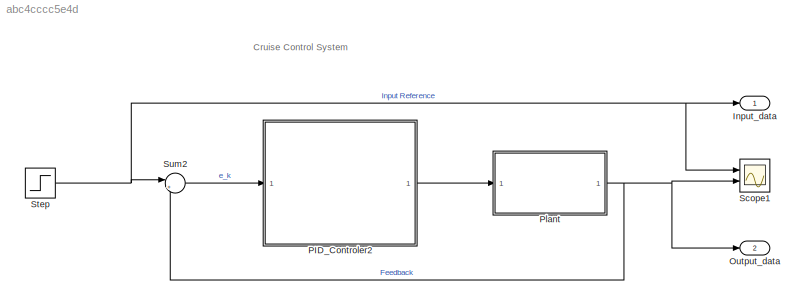
MODEL slx_abc4cccc5e4d
KIND model
CONFIG AbsTol = auto
CONFIG EnableMultiTasking = off
CONFIG FixedStep = Ts
CONFIG MaxStep = auto
CONFIG MinStep = auto
CONFIG PostLoadFcn = load('CruiseControlTask3_Parameters.mat');\nload('PID_calibrationValues_Cruise.mat');
CONFIG PreLoadFcn = clear;\nload('CruiseControlTask3_Parameters.mat');\nload('PID_calibrationValues_Cruise.mat');
CONFIG RelTol = 1e-3
CONFIG SampleTimeConstraint = Unconstrained
CONFIG SolverName = VariableStepAuto
CONFIG StartTime = 0.0
CONFIG StopTime = 50
BLOCK [Outport] Input_data
BLOCK [Outport] Output_data
  Port = 2
BLOCK [ModelReference] PID_Controler2
  ModelNameDialog = PID_Controller_referenceModel.slx
  ModelReferenceVersion = 1.16
  Ports = [1, 1]
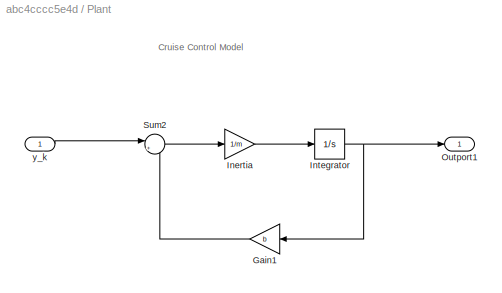
BLOCK [SubSystem] Plant
  Ports = [1, 1]
  RequestExecContextInheritance = off
BLOCK [Gain] Plant/Gain1
  Gain = b
  NameLocation = top
BLOCK [Gain] Plant/Inertia
  Gain = 1/m
BLOCK [Integrator] Plant/Integrator
  Ports = [1, 1]
BLOCK [Outport] Plant/Outport1
BLOCK [Sum] Plant/Sum2
  Inputs = |+-
  Ports = [2, 1]
BLOCK [Inport] Plant/y_k
BLOCK [Scope] Scope1
  Floating = off
  NumInputPorts = 2
  Ports = [2]
  ScopeSpecificationString = Simulink.scopes.TimeScopeBlockCfg('CurrentConfiguration', extmgr.ConfigurationSet(extmgr.Configuration('Core','General UI',true),extmgr.Configuration('Core','Source UI',true),extmgr.Configuration('Sources','WiredSimulink',true,'DataLoggingVariableName','ScopeData1'),extmgr.Configuration('Visuals','Time Domain',true,'SerializedDisplays',{struct('MinYLimReal','-125.57773','MaxYLimReal','1130.19959',...<+1430ch>
BLOCK [Step] Step
  After = 1000
  SampleTime = 0
BLOCK [Sum] Sum2
  Inputs = |+-
  Ports = [2, 1]
ANNOTATION (root): Cruise Control System
ANNOTATION Plant: Cruise Control Model
LINE PID_Controler2:1 -> Plant:1
LINE Plant/Gain1:1 -> Plant/Sum2:2
LINE Plant/Inertia:1 -> Plant/Integrator:1
NET Plant/Integrator:1 -> Plant/Gain1:1, Plant/Outport1:1
LINE Plant/Sum2:1 -> Plant/Inertia:1
LINE Plant/y_k:1 -> Plant/Sum2:1
NET Plant:1 -> Output_data:1, Scope1:2, Sum2:2
NET Step:1 -> Input_data:1, Scope1:1, Sum2:1
LINE Sum2:1 -> PID_Controler2:1
note: NET lines group one-source signal fan-out (src -> all destinations, sorted); 1:1 wires keep LINE
